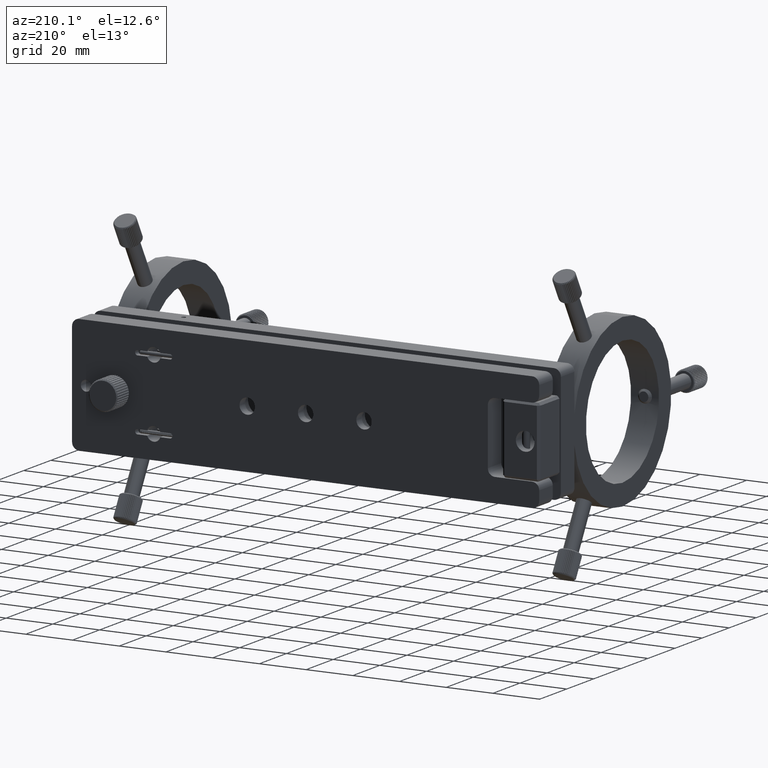
[diagram: clean part render]
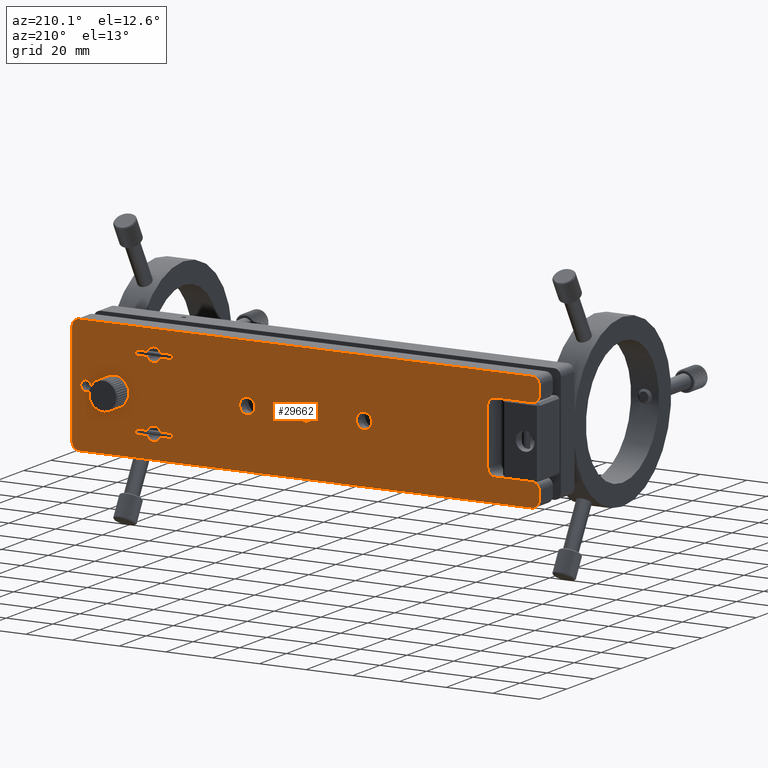
[diagram: same view with one face highlighted and labeled with its STEP entity id]
A machine part, auxiliary view. The second image highlights one B-rep face of the part: STEP entity #29662.
In plain terms, the highlighted planar face has unit normal (-0, -1, 0).
Its self-contained STEP definition (entity closure, byte-faithful):
#145 = CARTESIAN_POINT ( 'NONE',  ( -100.6330608537692100, 8.587042082954896600, 18.00000000000004300 ) ) ;
#266 = EDGE_CURVE ( 'NONE', #18221, #6446, #42740, .T. ) ;
#282 = CARTESIAN_POINT ( 'NONE',  ( -103.6330608537691900, 8.587042082954896600, 22.00000000000002100 ) ) ;
#299 = CARTESIAN_POINT ( 'NONE',  ( 90.36693914623062100, 8.587042082954889500, -2.249999999999970200 ) ) ;
#645 = CARTESIAN_POINT ( 'NONE',  ( -103.6330608537691900, 8.587042082954893000, -21.99999999999988600 ) ) ;
#766 = CARTESIAN_POINT ( 'NONE',  ( 61.36693914623065600, 8.587042082954889500, -14.99999999999995900 ) ) ;
#926 = DIRECTION ( 'NONE',  ( 2.209601736609701800E-017, 1.000000000000000000, -9.593664196835668400E-017 ) ) ;
#980 = CIRCLE ( 'NONE', #20160, 3.000000000000000900 ) ;
#1051 = ORIENTED_EDGE ( 'NONE', *, *, #38990, .T. ) ;
#1263 = EDGE_CURVE ( 'NONE', #6568, #23980, #38390, .T. ) ;
#1273 = AXIS2_PLACEMENT_3D ( 'NONE', #31531, #926, #12742 ) ;
#1400 = VERTEX_POINT ( 'NONE', #10879 ) ;
#1650 = VERTEX_POINT ( 'NONE', #32308 ) ;
#1787 = EDGE_CURVE ( 'NONE', #8616, #36314, #22448, .T. ) ;
#1836 = DIRECTION ( 'NONE',  ( 2.209601736609701800E-017, 1.000000000000000000, -9.593664196835668400E-017 ) ) ;
#2006 = EDGE_CURVE ( 'NONE', #16679, #45921, #17698, .T. ) ;
#2099 = VERTEX_POINT ( 'NONE', #37784 ) ;
#2132 = EDGE_CURVE ( 'NONE', #11029, #29323, #13003, .T. ) ;
#2275 = EDGE_CURVE ( 'NONE', #6568, #8616, #46582, .T. ) ;
#2282 = ORIENTED_EDGE ( 'NONE', *, *, #44531, .F. ) ;
#2379 = DIRECTION ( 'NONE',  ( -1.000000000000000000, 2.209601736609700300E-017, 1.665334536937734800E-016 ) ) ;
#2404 = AXIS2_PLACEMENT_3D ( 'NONE', #17110, #43473, #36064 ) ;
#2467 = CARTESIAN_POINT ( 'NONE',  ( 21.36693914623067800, 8.587042082954889500, 4.262819516818185700E-014 ) ) ;
#2726 = CARTESIAN_POINT ( 'NONE',  ( 68.36693914623062100, 8.587042082954893000, 15.99999999999996300 ) ) ;
#2759 = EDGE_LOOP ( 'NONE', ( #7089, #43267 ) ) ;
#2861 = VERTEX_POINT ( 'NONE', #18277 ) ;
#2923 = CARTESIAN_POINT ( 'NONE',  ( -103.6330608537692200, 8.587042082954893000, -17.99999999999991100 ) ) ;
#2941 = LINE ( 'NONE', #44871, #38186 ) ;
#2952 = EDGE_LOOP ( 'NONE', ( #28255, #36501 ) ) ;
#3170 = DIRECTION ( 'NONE',  ( -2.209601736609701800E-017, -1.000000000000000000, 9.593664196835668400E-017 ) ) ;
#3295 = AXIS2_PLACEMENT_3D ( 'NONE', #17467, #36754, #6370 ) ;
#3357 = CARTESIAN_POINT ( 'NONE',  ( 54.36693914623066300, 8.587042082954893000, 14.99999999999997200 ) ) ;
#3395 = EDGE_CURVE ( 'NONE', #47544, #18105, #29486, .T. ) ;
#3396 = DIRECTION ( 'NONE',  ( -1.000000000000000000, 2.209601736609700300E-017, 1.665334536937734800E-016 ) ) ;
#3591 = LINE ( 'NONE', #26067, #44756 ) ;
#3610 = DIRECTION ( 'NONE',  ( -2.209601736609701800E-017, -1.000000000000000000, 9.593664196835668400E-017 ) ) ;
#3966 = ORIENTED_EDGE ( 'NONE', *, *, #25344, .F. ) ;
#3979 = CARTESIAN_POINT ( 'NONE',  ( 93.36693914623062100, 8.587042082954889500, -21.99999999999995400 ) ) ;
#4018 = DIRECTION ( 'NONE',  ( 1.000000000000000000, -2.209601736609701800E-017, -3.274871782689411700E-016 ) ) ;
#4094 = DIRECTION ( 'NONE',  ( -2.209601736609701800E-017, -1.000000000000000000, 9.593664196835668400E-017 ) ) ;
#4217 = CIRCLE ( 'NONE', #23057, 3.299999999999996300 ) ;
#4319 = CARTESIAN_POINT ( 'NONE',  ( -100.6330608537692100, 8.587042082954896600, 22.00000000000002500 ) ) ;
#4440 = CARTESIAN_POINT ( 'NONE',  ( 64.19536627097683400, 8.587042082954889500, -13.99999999999990100 ) ) ;
#4462 = CARTESIAN_POINT ( 'NONE',  ( 54.36693914623066300, 8.587042082954889500, -14.99999999999989900 ) ) ;
#4616 = DIRECTION ( 'NONE',  ( 0.0000000000000000000, 0.0000000000000000000, -1.000000000000000000 ) ) ;
#4622 = DIRECTION ( 'NONE',  ( 2.209601736609701800E-017, 1.000000000000000000, -9.593664196835668400E-017 ) ) ;
#5091 = LINE ( 'NONE', #9312, #18526 ) ;
#5348 = VERTEX_POINT ( 'NONE', #36528 ) ;
#5441 = DIRECTION ( 'NONE',  ( -1.314184451497582700E-016, 0.0000000000000000000, -1.000000000000000000 ) ) ;
#5450 = AXIS2_PLACEMENT_3D ( 'NONE', #3979, #11508, #37963 ) ;
#5468 = CARTESIAN_POINT ( 'NONE',  ( 68.36693914623062100, 8.587042082954889500, -14.99999999999990100 ) ) ;
#5517 = CARTESIAN_POINT ( 'NONE',  ( -100.6330608537692100, 8.587042082954893000, -14.99999999999992500 ) ) ;
#5557 = CARTESIAN_POINT ( 'NONE',  ( 54.36693914623066300, 8.587042082954893000, 15.99999999999996600 ) ) ;
#5709 = EDGE_CURVE ( 'NONE', #1400, #16679, #980, .T. ) ;
#5753 = DIRECTION ( 'NONE',  ( 0.0000000000000000000, 0.0000000000000000000, -1.000000000000000000 ) ) ;
#5774 = FACE_BOUND ( 'NONE', #2952, .T. ) ;
#5884 = CARTESIAN_POINT ( 'NONE',  ( 64.19536627097683400, 8.587042082954889500, -15.99999999999989000 ) ) ;
#5909 = ORIENTED_EDGE ( 'NONE', *, *, #266, .F. ) ;
#6153 = CARTESIAN_POINT ( 'NONE',  ( -100.6330608537692100, 8.587042082954896600, 15.00000000000004100 ) ) ;
#6370 = DIRECTION ( 'NONE',  ( 0.0000000000000000000, 0.0000000000000000000, -1.000000000000000000 ) ) ;
#6399 = CIRCLE ( 'NONE', #41665, 1.000000000000000900 ) ;
#6446 = VERTEX_POINT ( 'NONE', #2726 ) ;
#6495 = DIRECTION ( 'NONE',  ( -2.209601736609701800E-017, -1.000000000000000000, 9.593664196835668400E-017 ) ) ;
#6568 = VERTEX_POINT ( 'NONE', #25741 ) ;
#6600 = DIRECTION ( 'NONE',  ( -2.209601736609701800E-017, -1.000000000000000000, 9.593664196835668400E-017 ) ) ;
#6688 = AXIS2_PLACEMENT_3D ( 'NONE', #3357, #29840, #14818 ) ;
#6698 = VERTEX_POINT ( 'NONE', #42998 ) ;
#7089 = ORIENTED_EDGE ( 'NONE', *, *, #48027, .T. ) ;
#7094 = CIRCLE ( 'NONE', #43907, 2.999999999999999100 ) ;
#7163 = VECTOR ( 'NONE', #38080, 1000.000000000000000 ) ;
#7752 = AXIS2_PLACEMENT_3D ( 'NONE', #32415, #47706, #43897 ) ;
#7832 = CARTESIAN_POINT ( 'NONE',  ( 54.36693914623066300, 8.587042082954889500, -13.99999999999989900 ) ) ;
#8148 = ORIENTED_EDGE ( 'NONE', *, *, #15778, .T. ) ;
#8417 = EDGE_CURVE ( 'NONE', #29323, #2861, #19720, .T. ) ;
#8616 = VERTEX_POINT ( 'NONE', #16252 ) ;
#8618 = VECTOR ( 'NONE', #33603, 1000.000000000000000 ) ;
#8686 = FACE_BOUND ( 'NONE', #10899, .T. ) ;
#9312 = CARTESIAN_POINT ( 'NONE',  ( 54.36693914623066300, 8.587042082954893000, 13.99999999999997200 ) ) ;
#9343 = ORIENTED_EDGE ( 'NONE', *, *, #42052, .F. ) ;
#9437 = AXIS2_PLACEMENT_3D ( 'NONE', #48386, #3170, #26020 ) ;
#9595 = DIRECTION ( 'NONE',  ( -2.209601736609701800E-017, -1.000000000000000000, 9.593664196835668400E-017 ) ) ;
#9672 = DIRECTION ( 'NONE',  ( 0.0000000000000000000, 0.0000000000000000000, -1.000000000000000000 ) ) ;
#9884 = CARTESIAN_POINT ( 'NONE',  ( 61.36693914623065600, 8.587042082954893000, 18.00000000000002500 ) ) ;
#9959 = ORIENTED_EDGE ( 'NONE', *, *, #2132, .F. ) ;
#10096 = EDGE_CURVE ( 'NONE', #16962, #26994, #47349, .T. ) ;
#10333 = CARTESIAN_POINT ( 'NONE',  ( 58.53851202148447200, 8.587042082954893000, 15.99999999999996600 ) ) ;
#10401 = CIRCLE ( 'NONE', #2404, 2.999999999999999100 ) ;
#10844 = CARTESIAN_POINT ( 'NONE',  ( 61.36693914623065600, 8.587042082954889500, -11.99999999999995700 ) ) ;
#10879 = CARTESIAN_POINT ( 'NONE',  ( 58.53851202148447200, 8.587042082954889500, -15.99999999999989000 ) ) ;
#10899 = EDGE_LOOP ( 'NONE', ( #20845, #47634 ) ) ;
#11004 = EDGE_CURVE ( 'NONE', #27906, #2099, #47302, .T. ) ;
#11029 = VERTEX_POINT ( 'NONE', #29042 ) ;
#11052 = CARTESIAN_POINT ( 'NONE',  ( -84.63306085376922300, 8.587042082954896600, 15.00000000000004600 ) ) ;
#11387 = CARTESIAN_POINT ( 'NONE',  ( 90.36693914623062100, 8.587042082954889500, 3.113738686331150000E-014 ) ) ;
#11432 = AXIS2_PLACEMENT_3D ( 'NONE', #15299, #22843, #15602 ) ;
#11483 = ORIENTED_EDGE ( 'NONE', *, *, #13709, .F. ) ;
#11508 = DIRECTION ( 'NONE',  ( -2.209601736609701800E-017, -1.000000000000000000, 9.593664196835668400E-017 ) ) ;
#11567 = EDGE_CURVE ( 'NONE', #29405, #26646, #24261, .T. ) ;
#11718 = ORIENTED_EDGE ( 'NONE', *, *, #41041, .F. ) ;
#11804 = EDGE_LOOP ( 'NONE', ( #18832, #15224, #16352, #38600, #40187, #15210, #41392, #15474, #11483, #46302, #11718, #18207, #9959, #43169, #45316, #38271 ) ) ;
#11838 = CARTESIAN_POINT ( 'NONE',  ( 58.53851202148447200, 8.587042082954893000, 13.99999999999998200 ) ) ;
#11839 = CARTESIAN_POINT ( 'NONE',  ( 68.36693914623062100, 8.587042082954893000, 15.99999999999996300 ) ) ;
#11877 = CIRCLE ( 'NONE', #9437, 2.500000000000000900 ) ;
#12104 = VECTOR ( 'NONE', #4018, 1000.000000000000000 ) ;
#12742 = DIRECTION ( 'NONE',  ( 0.0000000000000000000, 0.0000000000000000000, -1.000000000000000000 ) ) ;
#12783 = EDGE_CURVE ( 'NONE', #25120, #14509, #4217, .T. ) ;
#12874 = CIRCLE ( 'NONE', #26343, 3.000000000000000900 ) ;
#13003 = CIRCLE ( 'NONE', #19961, 3.000000000000006200 ) ;
#13142 = DIRECTION ( 'NONE',  ( 0.0000000000000000000, 0.0000000000000000000, -1.000000000000000000 ) ) ;
#13252 = CARTESIAN_POINT ( 'NONE',  ( 21.36693914623067800, 8.587042082954889500, 4.262819516818185700E-014 ) ) ;
#13381 = VERTEX_POINT ( 'NONE', #31844 ) ;
#13507 = CARTESIAN_POINT ( 'NONE',  ( 61.36693914623065600, 8.587042082954893000, 15.00000000000002100 ) ) ;
#13709 = EDGE_CURVE ( 'NONE', #17870, #26435, #7094, .T. ) ;
#13851 = ORIENTED_EDGE ( 'NONE', *, *, #38490, .T. ) ;
#13916 = CARTESIAN_POINT ( 'NONE',  ( 93.36693914623062100, 8.587042082954885900, -24.99999999999995700 ) ) ;
#14139 = AXIS2_PLACEMENT_3D ( 'NONE', #39237, #35500, #9672 ) ;
#14204 = AXIS2_PLACEMENT_3D ( 'NONE', #20108, #16648, #46634 ) ;
#14323 = AXIS2_PLACEMENT_3D ( 'NONE', #21231, #46591, #27701 ) ;
#14509 = VERTEX_POINT ( 'NONE', #28627 ) ;
#14818 = DIRECTION ( 'NONE',  ( 0.0000000000000000000, 0.0000000000000000000, -1.000000000000000000 ) ) ;
#14920 = ORIENTED_EDGE ( 'NONE', *, *, #34040, .F. ) ;
#15129 = EDGE_CURVE ( 'NONE', #18221, #42087, #25854, .T. ) ;
#15150 = EDGE_CURVE ( 'NONE', #17890, #11029, #26412, .T. ) ;
#15210 = ORIENTED_EDGE ( 'NONE', *, *, #22075, .F. ) ;
#15224 = ORIENTED_EDGE ( 'NONE', *, *, #34643, .F. ) ;
#15236 = AXIS2_PLACEMENT_3D ( 'NONE', #22737, #18935, #45302 ) ;
#15299 = CARTESIAN_POINT ( 'NONE',  ( 93.36693914623062100, 8.587042082954893000, 22.00000000000001800 ) ) ;
#15474 = ORIENTED_EDGE ( 'NONE', *, *, #43580, .F. ) ;
#15602 = DIRECTION ( 'NONE',  ( -1.665334536937734800E-016, -9.593664196835668400E-017, -1.000000000000000000 ) ) ;
#15778 = EDGE_CURVE ( 'NONE', #33387, #2099, #19835, .T. ) ;
#16252 = CARTESIAN_POINT ( 'NONE',  ( 68.36693914623062100, 8.587042082954889500, -13.99999999999990100 ) ) ;
#16313 = EDGE_CURVE ( 'NONE', #30173, #33018, #18025, .T. ) ;
#16352 = ORIENTED_EDGE ( 'NONE', *, *, #47600, .F. ) ;
#16432 = CIRCLE ( 'NONE', #35675, 3.299999999999995800 ) ;
#16593 = CARTESIAN_POINT ( 'NONE',  ( -84.63306085376922300, 8.587042082954893000, -11.99999999999993400 ) ) ;
#16648 = DIRECTION ( 'NONE',  ( -2.209601736609701800E-017, -1.000000000000000000, 9.593664196835668400E-017 ) ) ;
#16679 = VERTEX_POINT ( 'NONE', #39615 ) ;
#16962 = VERTEX_POINT ( 'NONE', #299 ) ;
#17002 = ORIENTED_EDGE ( 'NONE', *, *, #26003, .T. ) ;
#17110 = CARTESIAN_POINT ( 'NONE',  ( -84.63306085376922300, 8.587042082954893000, 12.00000000000004600 ) ) ;
#17162 = VERTEX_POINT ( 'NONE', #34991 ) ;
#17288 = VECTOR ( 'NONE', #2379, 1000.000000000000000 ) ;
#17467 = CARTESIAN_POINT ( 'NONE',  ( 61.36693914623065600, 8.587042082954893000, 15.00000000000002100 ) ) ;
#17697 = CIRCLE ( 'NONE', #1273, 1.000000000000000900 ) ;
#17698 = CIRCLE ( 'NONE', #21564, 3.000000000000000900 ) ;
#17772 = AXIS2_PLACEMENT_3D ( 'NONE', #36058, #9595, #21528 ) ;
#17870 = VERTEX_POINT ( 'NONE', #32612 ) ;
#17890 = VERTEX_POINT ( 'NONE', #282 ) ;
#18025 = CIRCLE ( 'NONE', #17772, 2.500000000000000900 ) ;
#18105 = VERTEX_POINT ( 'NONE', #23433 ) ;
#18122 = ORIENTED_EDGE ( 'NONE', *, *, #2275, .F. ) ;
#18136 = AXIS2_PLACEMENT_3D ( 'NONE', #24381, #20733, #31657 ) ;
#18207 = ORIENTED_EDGE ( 'NONE', *, *, #8417, .F. ) ;
#18221 = VERTEX_POINT ( 'NONE', #20790 ) ;
#18277 = CARTESIAN_POINT ( 'NONE',  ( -84.63306085376922300, 8.587042082954896600, 15.00000000000004600 ) ) ;
#18526 = VECTOR ( 'NONE', #21268, 1000.000000000000000 ) ;
#18602 = FACE_BOUND ( 'NONE', #43815, .T. ) ;
#18635 = CARTESIAN_POINT ( 'NONE',  ( -81.63306085376920900, 8.587042082954893000, 12.00000000000004800 ) ) ;
#18646 = DIRECTION ( 'NONE',  ( 0.0000000000000000000, 0.0000000000000000000, -1.000000000000000000 ) ) ;
#18766 = CARTESIAN_POINT ( 'NONE',  ( 76.36693914623062100, 8.587042082954889500, -2.499999999999946300 ) ) ;
#18832 = ORIENTED_EDGE ( 'NONE', *, *, #35712, .F. ) ;
#18935 = DIRECTION ( 'NONE',  ( -2.209601736609701800E-017, -1.000000000000000000, 9.593664196835668400E-017 ) ) ;
#19355 = DIRECTION ( 'NONE',  ( 0.0000000000000000000, 0.0000000000000000000, -1.000000000000000000 ) ) ;
#19415 = VERTEX_POINT ( 'NONE', #26739 ) ;
#19720 = LINE ( 'NONE', #11052, #8618 ) ;
#19835 = CIRCLE ( 'NONE', #44918, 3.000000000000000900 ) ;
#19961 = AXIS2_PLACEMENT_3D ( 'NONE', #145, #26134, #22791 ) ;
#20108 = CARTESIAN_POINT ( 'NONE',  ( -28.63306085376929000, 8.587042082954893000, 5.095486785287054400E-014 ) ) ;
#20160 = AXIS2_PLACEMENT_3D ( 'NONE', #766, #4094, #38400 ) ;
#20602 = EDGE_CURVE ( 'NONE', #36314, #45921, #29163, .T. ) ;
#20733 = DIRECTION ( 'NONE',  ( -2.209601736609701800E-017, -1.000000000000000000, 9.593664196835668400E-017 ) ) ;
#20790 = CARTESIAN_POINT ( 'NONE',  ( 64.19536627097684800, 8.587042082954893000, 15.99999999999997300 ) ) ;
#20845 = ORIENTED_EDGE ( 'NONE', *, *, #12783, .T. ) ;
#21231 = CARTESIAN_POINT ( 'NONE',  ( -3.633060853769307200, 8.587042082954893000, 4.679153151052619400E-014 ) ) ;
#21268 = DIRECTION ( 'NONE',  ( -1.000000000000000000, 2.209601736609700300E-017, 1.665334536937734800E-016 ) ) ;
#21528 = DIRECTION ( 'NONE',  ( 0.0000000000000000000, 0.0000000000000000000, -1.000000000000000000 ) ) ;
#21564 = AXIS2_PLACEMENT_3D ( 'NONE', #40767, #6600, #36972 ) ;
#21694 = AXIS2_PLACEMENT_3D ( 'NONE', #33543, #37307, #4616 ) ;
#21816 = VERTEX_POINT ( 'NONE', #645 ) ;
#22059 = AXIS2_PLACEMENT_3D ( 'NONE', #29755, #3610, #29905 ) ;
#22072 = ORIENTED_EDGE ( 'NONE', *, *, #36844, .T. ) ;
#22075 = EDGE_CURVE ( 'NONE', #19415, #21816, #29657, .T. ) ;
#22196 = CARTESIAN_POINT ( 'NONE',  ( 54.36693914623066300, 8.587042082954893000, 13.99999999999997200 ) ) ;
#22219 = VERTEX_POINT ( 'NONE', #37413 ) ;
#22448 = CIRCLE ( 'NONE', #31049, 1.000000000000000900 ) ;
#22513 = VECTOR ( 'NONE', #47486, 1000.000000000000000 ) ;
#22575 = EDGE_CURVE ( 'NONE', #21816, #5348, #36274, .T. ) ;
#22668 = CARTESIAN_POINT ( 'NONE',  ( 21.36693914623067800, 8.587042082954889500, -3.299999999999953200 ) ) ;
#22737 = CARTESIAN_POINT ( 'NONE',  ( 61.36693914623065600, 8.587042082954889500, -14.99999999999995900 ) ) ;
#22791 = DIRECTION ( 'NONE',  ( 0.0000000000000000000, 0.0000000000000000000, -1.000000000000000000 ) ) ;
#22828 = VECTOR ( 'NONE', #40049, 1000.000000000000000 ) ;
#22843 = DIRECTION ( 'NONE',  ( -2.209601736609701800E-017, -1.000000000000000000, 9.593664196835668400E-017 ) ) ;
#22848 = DIRECTION ( 'NONE',  ( -2.209601736609701800E-017, -1.000000000000000000, 9.593664196835668400E-017 ) ) ;
#23057 = AXIS2_PLACEMENT_3D ( 'NONE', #28445, #31910, #5441 ) ;
#23433 = CARTESIAN_POINT ( 'NONE',  ( 21.36693914623067800, 8.587042082954889500, 3.300000000000039300 ) ) ;
#23446 = CARTESIAN_POINT ( 'NONE',  ( 93.36693914623062100, 8.587042082954893000, 25.00000000000001800 ) ) ;
#23980 = VERTEX_POINT ( 'NONE', #10844 ) ;
#24261 = CIRCLE ( 'NONE', #6688, 1.000000000000000900 ) ;
#24381 = CARTESIAN_POINT ( 'NONE',  ( -100.6330608537692100, 8.587042082954893000, -21.99999999999989300 ) ) ;
#24589 = ORIENTED_EDGE ( 'NONE', *, *, #15129, .T. ) ;
#24630 = CARTESIAN_POINT ( 'NONE',  ( -28.63306085376929000, 8.587042082954893000, 5.095486785287054400E-014 ) ) ;
#24707 = DIRECTION ( 'NONE',  ( -2.209601736609701800E-017, -1.000000000000000000, 9.593664196835668400E-017 ) ) ;
#24917 = CARTESIAN_POINT ( 'NONE',  ( -103.6330608537691900, 8.587042082954896600, 22.00000000000002100 ) ) ;
#25045 = CARTESIAN_POINT ( 'NONE',  ( 68.36693914623062100, 8.587042082954889500, -15.99999999999989300 ) ) ;
#25120 = VERTEX_POINT ( 'NONE', #48641 ) ;
#25341 = EDGE_CURVE ( 'NONE', #39175, #45884, #35406, .T. ) ;
#25344 = EDGE_CURVE ( 'NONE', #6446, #27906, #17697, .T. ) ;
#25548 = CARTESIAN_POINT ( 'NONE',  ( 61.36693914623065600, 8.587042082954893000, 15.00000000000002100 ) ) ;
#25741 = CARTESIAN_POINT ( 'NONE',  ( 64.19536627097683400, 8.587042082954889500, -13.99999999999990100 ) ) ;
#25854 = CIRCLE ( 'NONE', #3295, 3.000000000000000900 ) ;
#26003 = EDGE_CURVE ( 'NONE', #47791, #33387, #41811, .T. ) ;
#26020 = DIRECTION ( 'NONE',  ( 0.0000000000000000000, 0.0000000000000000000, -1.000000000000000000 ) ) ;
#26067 = CARTESIAN_POINT ( 'NONE',  ( 58.53851202148447200, 8.587042082954893000, 15.99999999999996600 ) ) ;
#26107 = VECTOR ( 'NONE', #38202, 1000.000000000000000 ) ;
#26134 = DIRECTION ( 'NONE',  ( -2.209601736609701800E-017, -1.000000000000000000, 9.593664196835668400E-017 ) ) ;
#26331 = VERTEX_POINT ( 'NONE', #39110 ) ;
#26343 = AXIS2_PLACEMENT_3D ( 'NONE', #41085, #30252, #18646 ) ;
#26412 = LINE ( 'NONE', #24917, #22828 ) ;
#26435 = VERTEX_POINT ( 'NONE', #41056 ) ;
#26439 = EDGE_CURVE ( 'NONE', #44698, #19415, #33006, .T. ) ;
#26646 = VERTEX_POINT ( 'NONE', #5557 ) ;
#26693 = CARTESIAN_POINT ( 'NONE',  ( -100.6330608537692100, 8.587042082954889500, -24.99999999999989000 ) ) ;
#26739 = CARTESIAN_POINT ( 'NONE',  ( -103.6330608537692100, 8.587042082954893000, -17.99999999999991100 ) ) ;
#26935 = FACE_OUTER_BOUND ( 'NONE', #11804, .T. ) ;
#26942 = EDGE_CURVE ( 'NONE', #26646, #33464, #3591, .T. ) ;
#26994 = VERTEX_POINT ( 'NONE', #44636 ) ;
#27701 = DIRECTION ( 'NONE',  ( -1.314184451497582700E-016, 0.0000000000000000000, -1.000000000000000000 ) ) ;
#27906 = VERTEX_POINT ( 'NONE', #43402 ) ;
#28255 = ORIENTED_EDGE ( 'NONE', *, *, #16313, .T. ) ;
#28332 = EDGE_CURVE ( 'NONE', #6698, #17162, #43480, .T. ) ;
#28437 = LINE ( 'NONE', #34113, #37789 ) ;
#28445 = CARTESIAN_POINT ( 'NONE',  ( -3.633060853769307200, 8.587042082954893000, 4.679153151052619400E-014 ) ) ;
#28627 = CARTESIAN_POINT ( 'NONE',  ( -3.633060853769305900, 8.587042082954893000, 3.300000000000044700 ) ) ;
#28751 = EDGE_CURVE ( 'NONE', #1650, #13381, #6399, .T. ) ;
#28912 = AXIS2_PLACEMENT_3D ( 'NONE', #2467, #48846, #29473 ) ;
#29042 = CARTESIAN_POINT ( 'NONE',  ( -103.6330608537692200, 8.587042082954896600, 18.00000000000004300 ) ) ;
#29163 = LINE ( 'NONE', #25045, #17288 ) ;
#29236 = ORIENTED_EDGE ( 'NONE', *, *, #3395, .T. ) ;
#29323 = VERTEX_POINT ( 'NONE', #6153 ) ;
#29405 = VERTEX_POINT ( 'NONE', #22196 ) ;
#29425 = CIRCLE ( 'NONE', #33415, 3.299999999999995800 ) ;
#29473 = DIRECTION ( 'NONE',  ( 0.0000000000000000000, 0.0000000000000000000, -1.000000000000000000 ) ) ;
#29486 = CIRCLE ( 'NONE', #28912, 3.299999999999995800 ) ;
#29657 = LINE ( 'NONE', #2923, #22513 ) ;
#29662 = ADVANCED_FACE ( 'NONE', ( #8686, #45749, #45147, #5774, #18602, #26935, #34570, #47518 ), #30469, .F. ) ;
#29755 = CARTESIAN_POINT ( 'NONE',  ( -100.6330608537692100, 8.587042082954893000, -17.99999999999991100 ) ) ;
#29806 = AXIS2_PLACEMENT_3D ( 'NONE', #11387, #22848, #45091 ) ;
#29840 = DIRECTION ( 'NONE',  ( 2.209601736609701800E-017, 1.000000000000000000, -9.593664196835668400E-017 ) ) ;
#29905 = DIRECTION ( 'NONE',  ( 0.0000000000000000000, 0.0000000000000000000, -1.000000000000000000 ) ) ;
#30173 = VERTEX_POINT ( 'NONE', #18766 ) ;
#30252 = DIRECTION ( 'NONE',  ( -2.209601736609701800E-017, -1.000000000000000000, 9.593664196835668400E-017 ) ) ;
#30469 = PLANE ( 'NONE',  #11432 ) ;
#30621 = DIRECTION ( 'NONE',  ( 1.665334536937734800E-016, 9.593664196835669600E-017, 1.000000000000000000 ) ) ;
#30853 = EDGE_CURVE ( 'NONE', #5348, #35063, #34483, .T. ) ;
#31031 = CIRCLE ( 'NONE', #7752, 3.000000000000000900 ) ;
#31049 = AXIS2_PLACEMENT_3D ( 'NONE', #5468, #42452, #34881 ) ;
#31124 = CIRCLE ( 'NONE', #29806, 2.250000000000000900 ) ;
#31192 = ORIENTED_EDGE ( 'NONE', *, *, #10096, .T. ) ;
#31400 = LINE ( 'NONE', #7832, #26107 ) ;
#31531 = CARTESIAN_POINT ( 'NONE',  ( 68.36693914623062100, 8.587042082954893000, 14.99999999999997000 ) ) ;
#31532 = ORIENTED_EDGE ( 'NONE', *, *, #11567, .F. ) ;
#31567 = DIRECTION ( 'NONE',  ( -2.209601736609701800E-017, -1.000000000000000000, 9.593664196835668400E-017 ) ) ;
#31657 = DIRECTION ( 'NONE',  ( 0.0000000000000000000, 0.0000000000000000000, -1.000000000000000000 ) ) ;
#31694 = ORIENTED_EDGE ( 'NONE', *, *, #20602, .F. ) ;
#31718 = CIRCLE ( 'NONE', #5450, 2.999999999999999100 ) ;
#31844 = CARTESIAN_POINT ( 'NONE',  ( 54.36693914623066300, 8.587042082954889500, -13.99999999999989900 ) ) ;
#31887 = VECTOR ( 'NONE', #35316, 1000.000000000000000 ) ;
#31910 = DIRECTION ( 'NONE',  ( -2.209601736609701800E-017, -1.000000000000000000, 9.593664196835668400E-017 ) ) ;
#32074 = DIRECTION ( 'NONE',  ( -1.000000000000000000, 2.209601736609702400E-017, 3.833738881908745700E-016 ) ) ;
#32189 = CARTESIAN_POINT ( 'NONE',  ( -100.6330608537692100, 8.587042082954896600, 25.00000000000002100 ) ) ;
#32308 = CARTESIAN_POINT ( 'NONE',  ( 54.36693914623066300, 8.587042082954889500, -15.99999999999989000 ) ) ;
#32415 = CARTESIAN_POINT ( 'NONE',  ( 61.36693914623065600, 8.587042082954893000, 15.00000000000002100 ) ) ;
#32448 = CIRCLE ( 'NONE', #14139, 2.999999999999999100 ) ;
#32612 = CARTESIAN_POINT ( 'NONE',  ( -81.63306085376920900, 8.587042082954893000, -11.99999999999993100 ) ) ;
#33006 = CIRCLE ( 'NONE', #22059, 3.000000000000006200 ) ;
#33018 = VERTEX_POINT ( 'NONE', #37818 ) ;
#33097 = VECTOR ( 'NONE', #30621, 1000.000000000000000 ) ;
#33168 = AXIS2_PLACEMENT_3D ( 'NONE', #4319, #41948, #19355 ) ;
#33212 = LINE ( 'NONE', #47510, #46735 ) ;
#33387 = VERTEX_POINT ( 'NONE', #40569 ) ;
#33415 = AXIS2_PLACEMENT_3D ( 'NONE', #13252, #31567, #5753 ) ;
#33464 = VERTEX_POINT ( 'NONE', #10333 ) ;
#33543 = CARTESIAN_POINT ( 'NONE',  ( 90.36693914623062100, 8.587042082954889500, 3.113738686331150000E-014 ) ) ;
#33603 = DIRECTION ( 'NONE',  ( 1.000000000000000000, -2.209601736609698100E-017, 5.030698080332758400E-017 ) ) ;
#33639 = EDGE_LOOP ( 'NONE', ( #1051, #31192 ) ) ;
#34040 = EDGE_CURVE ( 'NONE', #1400, #1650, #28437, .T. ) ;
#34113 = CARTESIAN_POINT ( 'NONE',  ( 58.53851202148447200, 8.587042082954889500, -15.99999999999989000 ) ) ;
#34426 = ORIENTED_EDGE ( 'NONE', *, *, #26942, .F. ) ;
#34483 = LINE ( 'NONE', #26693, #12104 ) ;
#34569 = EDGE_CURVE ( 'NONE', #33018, #30173, #11877, .T. ) ;
#34570 = FACE_BOUND ( 'NONE', #33639, .T. ) ;
#34643 = EDGE_CURVE ( 'NONE', #45764, #22219, #40100, .T. ) ;
#34881 = DIRECTION ( 'NONE',  ( 0.0000000000000000000, 0.0000000000000000000, 1.000000000000000000 ) ) ;
#34980 = CARTESIAN_POINT ( 'NONE',  ( 96.36693914623062100, 8.587042082954885900, -21.99999999999995400 ) ) ;
#34991 = CARTESIAN_POINT ( 'NONE',  ( -28.63306085376929000, 8.587042082954893000, -3.299999999999944800 ) ) ;
#35063 = VERTEX_POINT ( 'NONE', #13916 ) ;
#35241 = CIRCLE ( 'NONE', #33168, 2.999999999999988900 ) ;
#35316 = DIRECTION ( 'NONE',  ( -1.000000000000000000, 2.209601736609698700E-017, 5.579729118605796500E-018 ) ) ;
#35406 = LINE ( 'NONE', #23446, #31887 ) ;
#35500 = DIRECTION ( 'NONE',  ( -2.209601736609701800E-017, -1.000000000000000000, 9.593664196835668400E-017 ) ) ;
#35675 = AXIS2_PLACEMENT_3D ( 'NONE', #24630, #43732, #39915 ) ;
#35712 = EDGE_CURVE ( 'NONE', #22219, #39175, #32448, .T. ) ;
#35927 = DIRECTION ( 'NONE',  ( -1.000000000000000000, 2.209601736609700300E-017, 1.665334536937734800E-016 ) ) ;
#36058 = CARTESIAN_POINT ( 'NONE',  ( 76.36693914623062100, 8.587042082954889500, 5.455991740188120500E-014 ) ) ;
#36064 = DIRECTION ( 'NONE',  ( 0.0000000000000000000, 0.0000000000000000000, -1.000000000000000000 ) ) ;
#36274 = CIRCLE ( 'NONE', #18136, 2.999999999999988900 ) ;
#36314 = VERTEX_POINT ( 'NONE', #39133 ) ;
#36348 = ORIENTED_EDGE ( 'NONE', *, *, #11004, .F. ) ;
#36400 = CARTESIAN_POINT ( 'NONE',  ( 64.19536627097683400, 8.587042082954893000, 13.99999999999997000 ) ) ;
#36501 = ORIENTED_EDGE ( 'NONE', *, *, #34569, .T. ) ;
#36528 = CARTESIAN_POINT ( 'NONE',  ( -100.6330608537692100, 8.587042082954889500, -24.99999999999988600 ) ) ;
#36754 = DIRECTION ( 'NONE',  ( -2.209601736609701800E-017, -1.000000000000000000, 9.593664196835668400E-017 ) ) ;
#36758 = CARTESIAN_POINT ( 'NONE',  ( 93.36693914623062100, 8.587042082954893000, 25.00000000000001800 ) ) ;
#36844 = EDGE_CURVE ( 'NONE', #18105, #47544, #29425, .T. ) ;
#36972 = DIRECTION ( 'NONE',  ( 0.0000000000000000000, 0.0000000000000000000, -1.000000000000000000 ) ) ;
#37307 = DIRECTION ( 'NONE',  ( -2.209601736609701800E-017, -1.000000000000000000, 9.593664196835668400E-017 ) ) ;
#37413 = CARTESIAN_POINT ( 'NONE',  ( 96.36693914623062100, 8.587042082954889500, 22.00000000000001800 ) ) ;
#37784 = CARTESIAN_POINT ( 'NONE',  ( 64.19536627097683400, 8.587042082954893000, 13.99999999999997000 ) ) ;
#37789 = VECTOR ( 'NONE', #3396, 1000.000000000000000 ) ;
#37796 = ORIENTED_EDGE ( 'NONE', *, *, #1263, .T. ) ;
#37818 = CARTESIAN_POINT ( 'NONE',  ( 76.36693914623062100, 8.587042082954889500, 2.500000000000056800 ) ) ;
#37866 = ORIENTED_EDGE ( 'NONE', *, *, #1787, .F. ) ;
#37963 = DIRECTION ( 'NONE',  ( 0.0000000000000000000, 0.0000000000000000000, -1.000000000000000000 ) ) ;
#38080 = DIRECTION ( 'NONE',  ( 1.000000000000000000, -2.209601736609700300E-017, -1.665334536937734800E-016 ) ) ;
#38095 = ORIENTED_EDGE ( 'NONE', *, *, #40440, .T. ) ;
#38186 = VECTOR ( 'NONE', #48001, 1000.000000000000000 ) ;
#38202 = DIRECTION ( 'NONE',  ( 1.000000000000000000, -2.209601736609700300E-017, -1.665334536937734800E-016 ) ) ;
#38271 = ORIENTED_EDGE ( 'NONE', *, *, #25341, .F. ) ;
#38286 = DIRECTION ( 'NONE',  ( 0.0000000000000000000, 0.0000000000000000000, 1.000000000000000000 ) ) ;
#38300 = DIRECTION ( 'NONE',  ( 1.000000000000000000, -2.209601736609700300E-017, -1.665334536937734800E-016 ) ) ;
#38390 = CIRCLE ( 'NONE', #15236, 3.000000000000000900 ) ;
#38400 = DIRECTION ( 'NONE',  ( 0.0000000000000000000, 0.0000000000000000000, -1.000000000000000000 ) ) ;
#38490 = EDGE_CURVE ( 'NONE', #23980, #26331, #12874, .T. ) ;
#38600 = ORIENTED_EDGE ( 'NONE', *, *, #30853, .F. ) ;
#38990 = EDGE_CURVE ( 'NONE', #26994, #16962, #31124, .T. ) ;
#39110 = CARTESIAN_POINT ( 'NONE',  ( 58.53851202148444300, 8.587042082954889500, -13.99999999999989900 ) ) ;
#39133 = CARTESIAN_POINT ( 'NONE',  ( 68.36693914623062100, 8.587042082954889500, -15.99999999999989300 ) ) ;
#39175 = VERTEX_POINT ( 'NONE', #36758 ) ;
#39237 = CARTESIAN_POINT ( 'NONE',  ( 93.36693914623062100, 8.587042082954893000, 22.00000000000001800 ) ) ;
#39347 = EDGE_LOOP ( 'NONE', ( #31532, #9343, #17002, #8148, #36348, #3966, #5909, #24589, #38095, #34426 ) ) ;
#39615 = CARTESIAN_POINT ( 'NONE',  ( 61.36693914623065600, 8.587042082954889500, -17.99999999999996100 ) ) ;
#39748 = EDGE_CURVE ( 'NONE', #14509, #25120, #42818, .T. ) ;
#39915 = DIRECTION ( 'NONE',  ( 0.0000000000000000000, 0.0000000000000000000, -1.000000000000000000 ) ) ;
#40049 = DIRECTION ( 'NONE',  ( -7.105427357601041300E-015, -9.593664196835657300E-017, -1.000000000000000000 ) ) ;
#40100 = LINE ( 'NONE', #45066, #33097 ) ;
#40170 = DIRECTION ( 'NONE',  ( 0.0000000000000000000, 0.0000000000000000000, -1.000000000000000000 ) ) ;
#40187 = ORIENTED_EDGE ( 'NONE', *, *, #22575, .F. ) ;
#40440 = EDGE_CURVE ( 'NONE', #42087, #33464, #31031, .T. ) ;
#40508 = ORIENTED_EDGE ( 'NONE', *, *, #5709, .T. ) ;
#40569 = CARTESIAN_POINT ( 'NONE',  ( 61.36693914623065600, 8.587042082954893000, 12.00000000000002000 ) ) ;
#40702 = EDGE_LOOP ( 'NONE', ( #29236, #22072 ) ) ;
#40767 = CARTESIAN_POINT ( 'NONE',  ( 61.36693914623065600, 8.587042082954889500, -14.99999999999995900 ) ) ;
#41041 = EDGE_CURVE ( 'NONE', #2861, #48256, #10401, .T. ) ;
#41056 = CARTESIAN_POINT ( 'NONE',  ( -84.63306085376922300, 8.587042082954893000, -14.99999999999993600 ) ) ;
#41085 = CARTESIAN_POINT ( 'NONE',  ( 61.36693914623065600, 8.587042082954889500, -14.99999999999995900 ) ) ;
#41392 = ORIENTED_EDGE ( 'NONE', *, *, #26439, .F. ) ;
#41665 = AXIS2_PLACEMENT_3D ( 'NONE', #4462, #4622, #38286 ) ;
#41738 = ORIENTED_EDGE ( 'NONE', *, *, #28751, .F. ) ;
#41811 = CIRCLE ( 'NONE', #42556, 3.000000000000000900 ) ;
#41948 = DIRECTION ( 'NONE',  ( -2.209601736609701800E-017, -1.000000000000000000, 9.593664196835668400E-017 ) ) ;
#42052 = EDGE_CURVE ( 'NONE', #47791, #29405, #5091, .T. ) ;
#42087 = VERTEX_POINT ( 'NONE', #9884 ) ;
#42452 = DIRECTION ( 'NONE',  ( 2.209601736609701800E-017, 1.000000000000000000, -9.593664196835668400E-017 ) ) ;
#42556 = AXIS2_PLACEMENT_3D ( 'NONE', #25548, #6495, #40170 ) ;
#42740 = LINE ( 'NONE', #11839, #47469 ) ;
#42818 = CIRCLE ( 'NONE', #14323, 3.299999999999996300 ) ;
#42998 = CARTESIAN_POINT ( 'NONE',  ( -28.63306085376929000, 8.587042082954893000, 3.300000000000047800 ) ) ;
#43152 = VECTOR ( 'NONE', #35927, 1000.000000000000000 ) ;
#43169 = ORIENTED_EDGE ( 'NONE', *, *, #15150, .F. ) ;
#43267 = ORIENTED_EDGE ( 'NONE', *, *, #28332, .T. ) ;
#43402 = CARTESIAN_POINT ( 'NONE',  ( 68.36693914623062100, 8.587042082954893000, 13.99999999999997000 ) ) ;
#43473 = DIRECTION ( 'NONE',  ( 2.209601736609701800E-017, 1.000000000000000000, -9.593664196835668400E-017 ) ) ;
#43480 = CIRCLE ( 'NONE', #14204, 3.299999999999995800 ) ;
#43580 = EDGE_CURVE ( 'NONE', #26435, #44698, #33212, .T. ) ;
#43732 = DIRECTION ( 'NONE',  ( -2.209601736609701800E-017, -1.000000000000000000, 9.593664196835668400E-017 ) ) ;
#43815 = EDGE_LOOP ( 'NONE', ( #40508, #48205, #31694, #37866, #18122, #37796, #13851, #2282, #41738, #14920 ) ) ;
#43897 = DIRECTION ( 'NONE',  ( 0.0000000000000000000, 0.0000000000000000000, -1.000000000000000000 ) ) ;
#43907 = AXIS2_PLACEMENT_3D ( 'NONE', #16593, #1836, #13142 ) ;
#44531 = EDGE_CURVE ( 'NONE', #13381, #26331, #31400, .T. ) ;
#44636 = CARTESIAN_POINT ( 'NONE',  ( 90.36693914623062100, 8.587042082954889500, 2.250000000000033300 ) ) ;
#44698 = VERTEX_POINT ( 'NONE', #5517 ) ;
#44756 = VECTOR ( 'NONE', #48435, 1000.000000000000000 ) ;
#44871 = CARTESIAN_POINT ( 'NONE',  ( -81.63306085376920900, 8.587042082954893000, -11.99999999999993100 ) ) ;
#44918 = AXIS2_PLACEMENT_3D ( 'NONE', #13507, #24707, #47098 ) ;
#45066 = CARTESIAN_POINT ( 'NONE',  ( 96.36693914623062100, 8.587042082954885900, -21.99999999999995400 ) ) ;
#45091 = DIRECTION ( 'NONE',  ( 0.0000000000000000000, 0.0000000000000000000, -1.000000000000000000 ) ) ;
#45147 = FACE_BOUND ( 'NONE', #40702, .T. ) ;
#45302 = DIRECTION ( 'NONE',  ( 0.0000000000000000000, 0.0000000000000000000, -1.000000000000000000 ) ) ;
#45316 = ORIENTED_EDGE ( 'NONE', *, *, #47830, .F. ) ;
#45749 = FACE_BOUND ( 'NONE', #2759, .T. ) ;
#45764 = VERTEX_POINT ( 'NONE', #34980 ) ;
#45884 = VERTEX_POINT ( 'NONE', #32189 ) ;
#45921 = VERTEX_POINT ( 'NONE', #5884 ) ;
#46302 = ORIENTED_EDGE ( 'NONE', *, *, #48184, .F. ) ;
#46582 = LINE ( 'NONE', #4440, #7163 ) ;
#46591 = DIRECTION ( 'NONE',  ( -2.209601736609701800E-017, -1.000000000000000000, 9.593664196835668400E-017 ) ) ;
#46634 = DIRECTION ( 'NONE',  ( 0.0000000000000000000, 0.0000000000000000000, -1.000000000000000000 ) ) ;
#46735 = VECTOR ( 'NONE', #32074, 1000.000000000000000 ) ;
#47098 = DIRECTION ( 'NONE',  ( 0.0000000000000000000, 0.0000000000000000000, -1.000000000000000000 ) ) ;
#47302 = LINE ( 'NONE', #36400, #43152 ) ;
#47349 = CIRCLE ( 'NONE', #21694, 2.250000000000000900 ) ;
#47469 = VECTOR ( 'NONE', #38300, 1000.000000000000000 ) ;
#47486 = DIRECTION ( 'NONE',  ( 6.772360450213497500E-015, -9.593664196835684400E-017, -1.000000000000000000 ) ) ;
#47510 = CARTESIAN_POINT ( 'NONE',  ( -100.6330608537692100, 8.587042082954893000, -14.99999999999992500 ) ) ;
#47518 = FACE_BOUND ( 'NONE', #39347, .T. ) ;
#47544 = VERTEX_POINT ( 'NONE', #22668 ) ;
#47600 = EDGE_CURVE ( 'NONE', #35063, #45764, #31718, .T. ) ;
#47634 = ORIENTED_EDGE ( 'NONE', *, *, #39748, .T. ) ;
#47706 = DIRECTION ( 'NONE',  ( -2.209601736609701800E-017, -1.000000000000000000, 9.593664196835668400E-017 ) ) ;
#47791 = VERTEX_POINT ( 'NONE', #11838 ) ;
#47830 = EDGE_CURVE ( 'NONE', #45884, #17890, #35241, .T. ) ;
#48001 = DIRECTION ( 'NONE',  ( -1.665334536937734800E-016, -9.593664196835669600E-017, -1.000000000000000000 ) ) ;
#48027 = EDGE_CURVE ( 'NONE', #17162, #6698, #16432, .T. ) ;
#48184 = EDGE_CURVE ( 'NONE', #48256, #17870, #2941, .T. ) ;
#48205 = ORIENTED_EDGE ( 'NONE', *, *, #2006, .T. ) ;
#48256 = VERTEX_POINT ( 'NONE', #18635 ) ;
#48386 = CARTESIAN_POINT ( 'NONE',  ( 76.36693914623062100, 8.587042082954889500, 5.455991740188120500E-014 ) ) ;
#48435 = DIRECTION ( 'NONE',  ( 1.000000000000000000, -2.209601736609700300E-017, -1.665334536937734800E-016 ) ) ;
#48641 = CARTESIAN_POINT ( 'NONE',  ( -3.633060853769307700, 8.587042082954893000, -3.299999999999949200 ) ) ;
#48846 = DIRECTION ( 'NONE',  ( -2.209601736609701800E-017, -1.000000000000000000, 9.593664196835668400E-017 ) ) ;